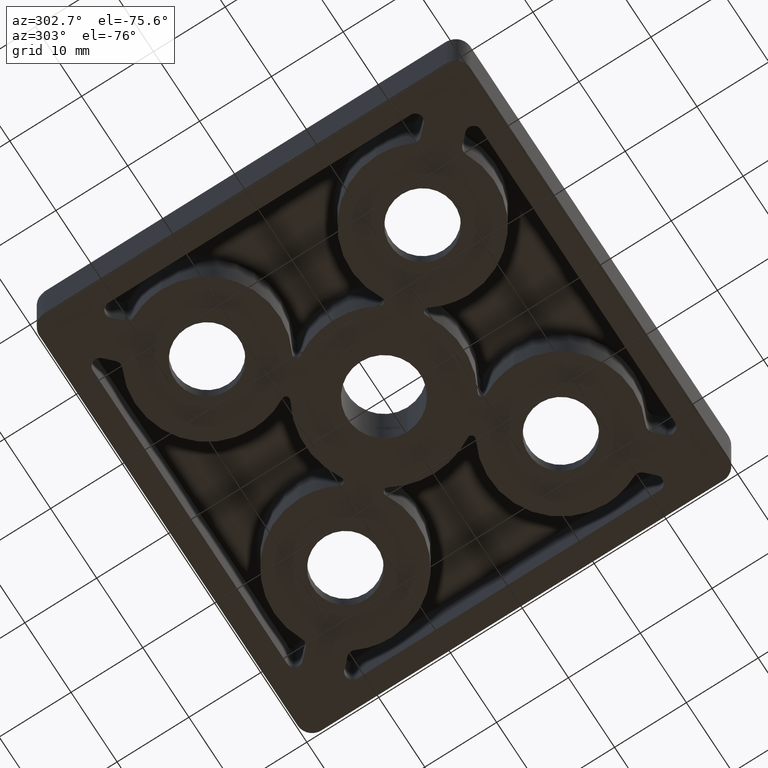
[diagram: clean part render]
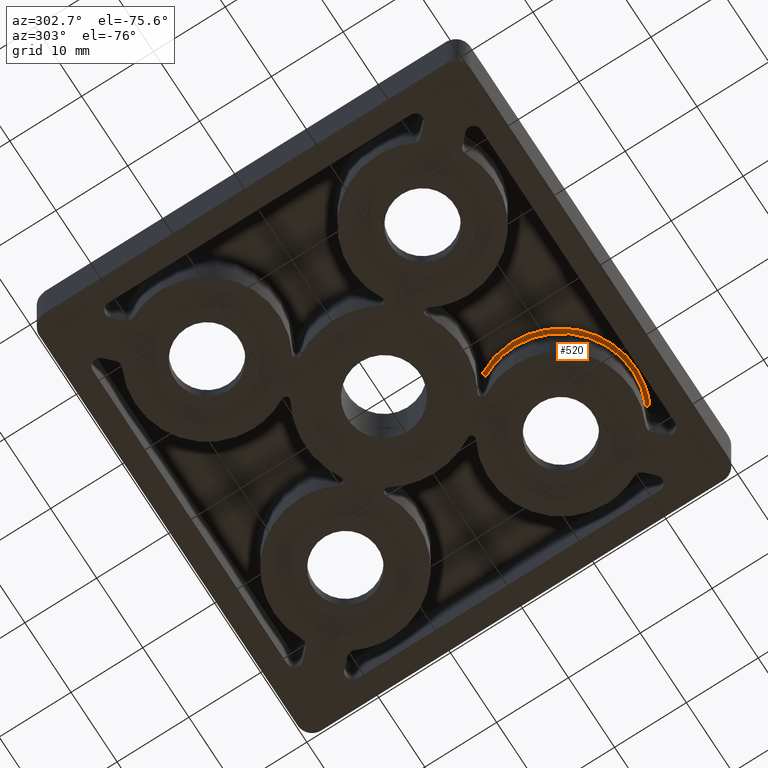
[diagram: same view with one face highlighted and labeled with its STEP entity id]
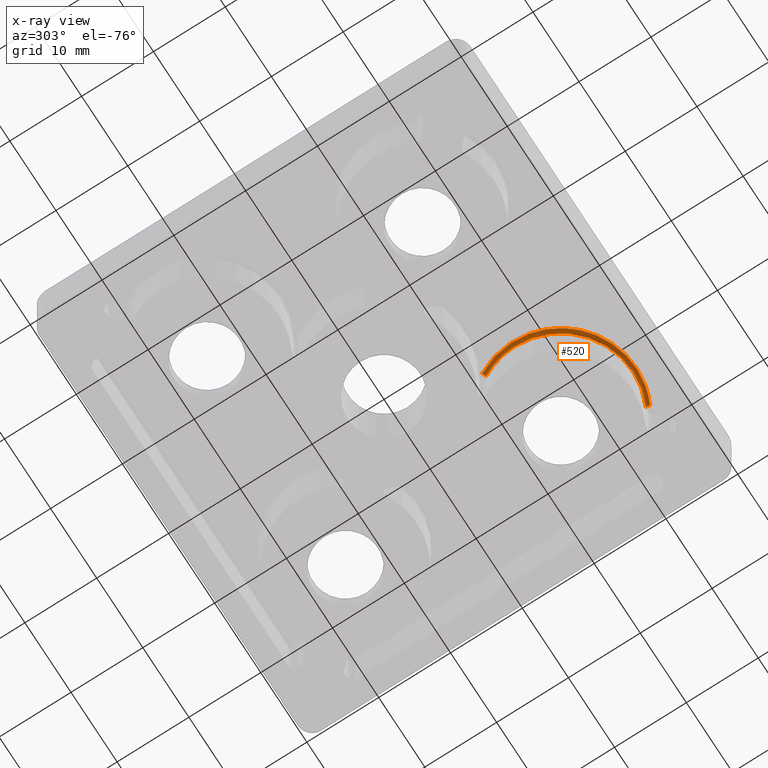
[diagram: x-ray of the same camera — body ghosted, the highlighted face saturated]
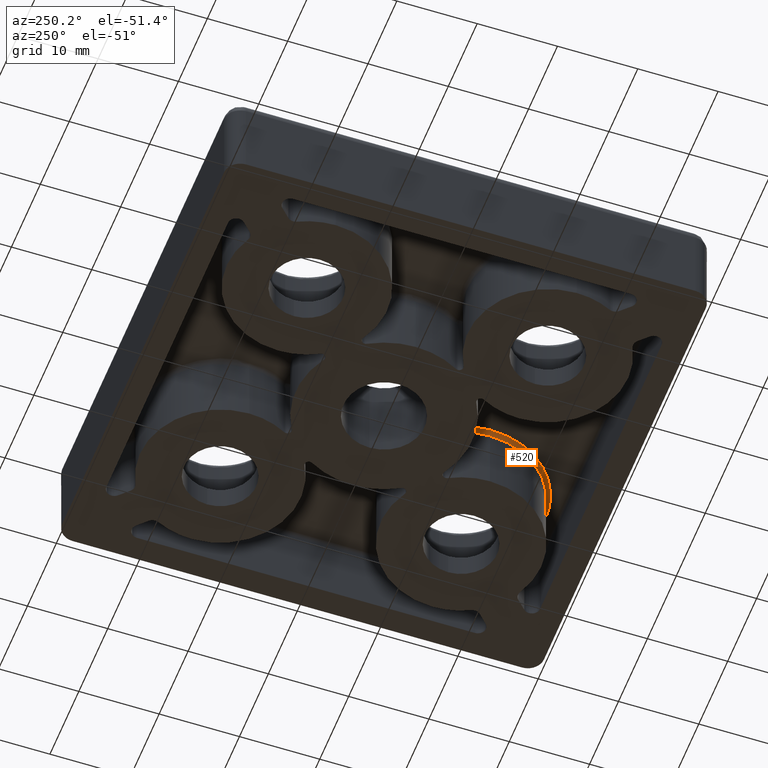
[diagram: same view with one face highlighted and labeled with its STEP entity id]
A machine part, auxiliary view. The second image highlights one B-rep face of the part: STEP entity #520.
The next image is the same camera in x-ray: the body ghosted, the highlighted face saturated — about 0% of this face is hidden behind the body in this view.
A second angle (auxiliary view) of the same face is appended — the face is thin or edge-on in the first view.
In plain terms, the highlighted face is a freeform B-spline surface patch.
Its self-contained STEP definition (entity closure, byte-faithful):
#520=ADVANCED_FACE('NONE',(#1093),#1094,.F.);
#1093=FACE_OUTER_BOUND('',#2644,.T.);
#1094=(B_SPLINE_SURFACE(3,3,((#2646,#2647,#2648,#2649),(#2650,#2651,#2652,#2653),(#2654,#2655,#2656,#2657),(#2658,#2659,#2660,#2661)),.UNSPECIFIED.,.F.,.F.,.F.)B_SPLINE_SURFACE_WITH_KNOTS((4,4),(4,4),(0.0,1.0),(0.0,1.0),.UNSPECIFIED.)RATIONAL_B_SPLINE_SURFACE(((1.0,0.531891236492119,0.531891236492119,1.0),(0.804737854124363,0.428033012282222,0.428033012282222,0.804737854124363),(0.804737854124363,0.428033012282222,0.428033012282222,0.804737854124363),(1.0,0.531891236492119,0.531891236492119,1.0)))BOUNDED_SURFACE()REPRESENTATION_ITEM('')GEOMETRIC_REPRESENTATION_ITEM()SURFACE());
#2644=EDGE_LOOP('',(#4459,#4460,#4461,#4462,#4463,#4464));
#2646=CARTESIAN_POINT('',(6.24514832578445,-10.167550086914,8.5));
#2647=CARTESIAN_POINT('',(0.463091785337932,-20.6427848630588,8.5));
#2648=CARTESIAN_POINT('',(8.74081720517076,-29.2823440720769,8.5));
#2649=CARTESIAN_POINT('',(19.4536971524758,-23.9534675782084,8.5));
#2650=CARTESIAN_POINT('',(6.24514832578445,-10.167550086914,8.79289321881345));
#2651=CARTESIAN_POINT('',(0.463091785337932,-20.6427848630588,8.79289321881345));
#2652=CARTESIAN_POINT('',(8.74081720517076,-29.2823440720768,8.79289321881345));
#2653=CARTESIAN_POINT('',(19.4536971524758,-23.9534675782084,8.79289321881345));
#2654=CARTESIAN_POINT('',(6.06382941078321,-10.0674667722395,9.0));
#2655=CARTESIAN_POINT('',(0.162022558463638,-20.7596507640504,9.0));
#2656=CARTESIAN_POINT('',(8.61118528502123,-29.5781411029335,9.0));
#2657=CARTESIAN_POINT('',(19.5459362406387,-24.1388999632665,9.0));
#2658=CARTESIAN_POINT('',(5.80740574207367,-9.92592759125965,9.0));
#2659=CARTESIAN_POINT('',(-0.263753625395176,-20.9249241062118,9.0));
#2660=CARTESIAN_POINT('',(8.4278580654293,-29.9964612756807,9.0));
#2661=CARTESIAN_POINT('',(19.6763820100996,-24.4011409571188,9.0));
#4459=ORIENTED_EDGE('',*,*,#5004,.F.);
#4460=ORIENTED_EDGE('',*,*,#5341,.F.);
#4461=ORIENTED_EDGE('',*,*,#5342,.F.);
#4462=ORIENTED_EDGE('',*,*,#5343,.F.);
#4463=ORIENTED_EDGE('',*,*,#4937,.F.);
#4464=ORIENTED_EDGE('',*,*,#5236,.F.);
#4937=EDGE_CURVE('NONE',#5724,#5721,#5726,.T.);
#5004=EDGE_CURVE('NONE',#5834,#5835,#5836,.T.);
#5236=EDGE_CURVE('NONE',#5835,#5724,#6146,.T.);
#5341=EDGE_CURVE('NONE',#6271,#5834,#6272,.T.);
#5342=EDGE_CURVE('NONE',#6273,#6271,#6274,.T.);
#5343=EDGE_CURVE('NONE',#5721,#6273,#6275,.T.);
#5721=VERTEX_POINT('NONE',#6805);
#5724=VERTEX_POINT('NONE',#6808);
#5726=CIRCLE('',#6810,0.5);
#5834=VERTEX_POINT('NONE',#6952);
#5835=VERTEX_POINT('NONE',#6953);
#5836=CIRCLE('',#6954,10.0);
#6146=CIRCLE('',#7372,10.0);
#6271=VERTEX_POINT('NONE',#7961);
#6272=CIRCLE('',#7962,0.500000000000001);
#6273=VERTEX_POINT('NONE',#7963);
#6274=B_SPLINE_CURVE_WITH_KNOTS('',3,(#7964,#7965,#7966,#7967,#7968,#7969,#7970,#7971,#7972,#7973,#7974,#7975,#7976,#7977,#7978,#7979,#7980,#7981,#7982,#7983,#7984,#7985,#7986,#7987,#7988,#7989,#7990,#7991,#7992,#7993,#7994,#7995,#7996,#7997,#7998,#7999,#8000,#8001,#8002,#8003,#8004,#8005,#8006,#8007,#8008,#8009,#8010,#8011,#8012,#8013,#8014,#8015,#8016,#8017,#8018,#8019,#8020,#8021,#8022,#8023),.UNSPECIFIED.,.F.,.F.,(4,1,1,1,1,2,2,1,2,2,2,1,2,2,1,1,1,2,2,2,1,1,1,1,2,2,1,2,2,2,1,2,2,1,1,1,2,2,4),(0.0,0.0624999999999934,0.09374999999999,0.109374999999988,0.117187499999988,0.121093749999987,0.124999999999987,0.156249999999985,0.171874999999984,0.187499999999982,0.249999999999977,0.281249999999975,0.296874999999973,0.312499999999972,0.343749999999969,0.359374999999968,0.367187499999967,0.371093749999967,0.374999999999967,0.5,0.562499999999973,0.593749999999974,0.609374999999974,0.617187499999975,0.621093749999975,0.624999999999975,0.656249999999978,0.671874999999979,0.687499999999981,0.749999999999986,0.781249999999989,0.79687499999999,0.812499999999992,0.843749999999994,0.859374999999996,0.867187499999996,0.871093749999997,0.874999999999997,1.0),.UNSPECIFIED.);
#6275=CIRCLE('',#8024,0.5);
#6805=CARTESIAN_POINT('',(5.98836479484357,-10.0258122713629,8.95527669817519));
#6808=CARTESIAN_POINT('',(6.24514832578445,-10.167550086914,8.5));
#6810=AXIS2_PLACEMENT_3D('',#8584,#8585,#8586);
#6952=CARTESIAN_POINT('',(19.4536971524758,-23.9534675782084,8.5));
#6953=CARTESIAN_POINT('',(4.99999999999999,-15.0,8.5));
#6954=AXIS2_PLACEMENT_3D('',#8686,#8687,#8688);
#7372=AXIS2_PLACEMENT_3D('',#9048,#9049,#9050);
#7961=CARTESIAN_POINT('',(19.6763820100996,-24.4011409571188,9.0));
#7962=AXIS2_PLACEMENT_3D('',#9162,#9163,#9164);
#7963=CARTESIAN_POINT('',(5.80740574207367,-9.92592759125965,9.0));
#7964=CARTESIAN_POINT('',(5.80740574207367,-9.92592759125965,9.0));
#7965=CARTESIAN_POINT('',(5.54398522021117,-10.4032737428934,9.0));
#7966=CARTESIAN_POINT('',(5.2079809756437,-11.1406577747041,9.0));
#7967=CARTESIAN_POINT('',(4.91944746554433,-12.0383275527802,9.0));
#7968=CARTESIAN_POINT('',(4.80104857096865,-12.4965095437259,9.0));
#7969=CARTESIAN_POINT('',(4.74831608879931,-12.7279373146756,9.00000000000001));
#7970=CARTESIAN_POINT('',(4.72710223182355,-12.8276213826848,9.0));
#7971=CARTESIAN_POINT('',(4.71326761122631,-12.894188703047,9.00000000000001));
#7972=CARTESIAN_POINT('',(4.70677523466788,-12.9261589365445,9.0));
#7973=CARTESIAN_POINT('',(4.64485237303764,-13.239034931133,9.0));
#7974=CARTESIAN_POINT('',(4.57933718481146,-13.6580334535465,9.0));
#7975=CARTESIAN_POINT('',(4.53939493750652,-14.0797777704034,9.0));
#7976=CARTESIAN_POINT('',(4.51844964839683,-14.361550824851,9.0));
#7977=CARTESIAN_POINT('',(4.51088893736125,-14.5006598971183,9.0));
#7978=CARTESIAN_POINT('',(4.48658761519276,-15.2185561320916,9.0));
#7979=CARTESIAN_POINT('',(4.51394120242543,-15.789559462992,9.0));
#7980=CARTESIAN_POINT('',(4.62557818898067,-16.6442685046452,9.0));
#7981=CARTESIAN_POINT('',(4.69858463575469,-17.0677923354944,9.0));
#7982=CARTESIAN_POINT('',(4.79737301277329,-17.4855701313777,9.00000000000001));
#7983=CARTESIAN_POINT('',(4.86896124861782,-17.7628117653075,9.0));
#7984=CARTESIAN_POINT('',(4.90812078093535,-17.9024504448761,9.0));
#7985=CARTESIAN_POINT('',(5.03118882176094,-18.3095132729936,9.0));
#7986=CARTESIAN_POINT('',(5.17016722843126,-18.7101839568095,9.0));
#7987=CARTESIAN_POINT('',(5.36015184310822,-19.1664468354004,9.0));
#7988=CARTESIAN_POINT('',(5.46210493550377,-19.3917817115639,9.0));
#7989=CARTESIAN_POINT('',(5.50729071475695,-19.48775453782,9.00000000000001));
#7990=CARTESIAN_POINT('',(5.5377460335475,-19.5516032523178,9.00000000000001));
#7991=CARTESIAN_POINT('',(5.5537216112465,-19.5846505750739,9.0));
#7992=CARTESIAN_POINT('',(6.04796063204482,-20.594504603737,9.0));
#7993=CARTESIAN_POINT('',(6.66401647425097,-21.4769705663065,9.00000000000001));
#7994=CARTESIAN_POINT('',(7.79545968034363,-22.6577532435956,9.0));
#7995=CARTESIAN_POINT('',(8.39924547691779,-23.1980966494287,9.0));
#7996=CARTESIAN_POINT('',(9.17027457826137,-23.7409134071473,9.0));
#7997=CARTESIAN_POINT('',(9.57244221360157,-23.9904258154015,9.0));
#7998=CARTESIAN_POINT('',(9.77768930243878,-24.1097080268774,9.0));
#7999=CARTESIAN_POINT('',(9.86654447004768,-24.1596559762275,9.0));
#8000=CARTESIAN_POINT('',(9.92597949946157,-24.1926939428108,9.0));
#8001=CARTESIAN_POINT('',(9.95457482027703,-24.2084188426645,9.0));
#8002=CARTESIAN_POINT('',(10.2348085862703,-24.3607174479558,9.0));
#8003=CARTESIAN_POINT('',(10.6152787714378,-24.5480525484219,9.0));
#8004=CARTESIAN_POINT('',(11.0059867023697,-24.7117930890044,9.0));
#8005=CARTESIAN_POINT('',(11.2687337109387,-24.815710213863,9.00000000000001));
#8006=CARTESIAN_POINT('',(11.3992777080117,-24.8643596040838,9.0));
#8007=CARTESIAN_POINT('',(12.0773556750992,-25.1013740108003,9.0));
#8008=CARTESIAN_POINT('',(12.6305919459694,-25.2453276533915,9.0));
#8009=CARTESIAN_POINT('',(13.4797611531799,-25.3933209647794,9.0));
#8010=CARTESIAN_POINT('',(13.9058081218341,-25.4497687908956,9.0));
#8011=CARTESIAN_POINT('',(14.3340486380619,-25.4798933726451,9.0));
#8012=CARTESIAN_POINT('',(14.6200297705634,-25.4941268172855,9.0));
#8013=CARTESIAN_POINT('',(14.7649943499779,-25.4983340155288,9.0));
#8014=CARTESIAN_POINT('',(15.1902375568125,-25.5020895103534,9.0));
#8015=CARTESIAN_POINT('',(15.614117408724,-25.4887528867189,9.00000000000001));
#8016=CARTESIAN_POINT('',(16.1062580315054,-25.4432822851752,9.0));
#8017=CARTESIAN_POINT('',(16.3517318751173,-25.4130691825775,9.0));
#8018=CARTESIAN_POINT('',(16.456807136427,-25.3985183239301,9.0));
#8019=CARTESIAN_POINT('',(16.5268289074058,-25.3884616656972,9.0));
#8020=CARTESIAN_POINT('',(16.5631511194268,-25.383051271751,9.0));
#8021=CARTESIAN_POINT('',(17.6738306052729,-25.2120983031321,9.00000000000001));
#8022=CARTESIAN_POINT('',(18.7003552507916,-24.8865216625842,9.0));
#8023=CARTESIAN_POINT('',(19.6763820100996,-24.4011409571188,9.0));
#8024=AXIS2_PLACEMENT_3D('',#9165,#9166,#9167);
#8584=CARTESIAN_POINT('',(5.80740574207368,-9.92592759125965,8.5));
#8585=DIRECTION('',(-0.483244991308605,-0.875485167421554,0.0));
#8586=DIRECTION('',(-0.875485167421554,0.483244991308605,0.0));
#8686=CARTESIAN_POINT('',(15.0,-15.0,8.5));
#8687=DIRECTION('',(0.0,0.0,-1.0));
#8688=DIRECTION('',(-1.0,0.0,0.0));
#9048=CARTESIAN_POINT('',(15.0,-15.0,8.5));
#9049=DIRECTION('',(0.0,0.0,-1.0));
#9050=DIRECTION('',(-1.0,0.0,0.0));
#9162=CARTESIAN_POINT('',(19.6763820100996,-24.4011409571188,8.5));
#9163=DIRECTION('',(-0.895346757820838,-0.445369715247584,0.0));
#9164=DIRECTION('',(0.445369715247584,-0.895346757820838,0.0));
#9165=CARTESIAN_POINT('',(5.80740574207368,-9.92592759125965,8.5));
#9166=DIRECTION('',(-0.483244991308605,-0.875485167421554,0.0));
#9167=DIRECTION('',(-0.875485167421554,0.483244991308605,0.0));